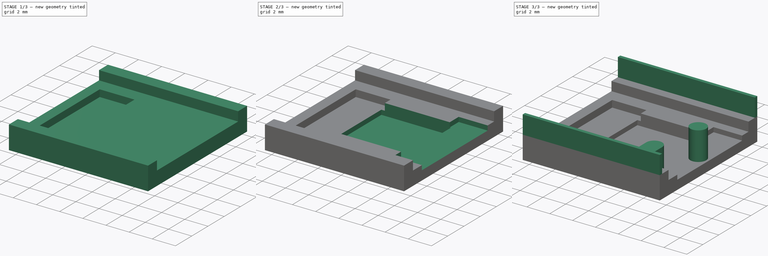
[diagram: build sequence overview — one tinted view per stage of 3, left to right]
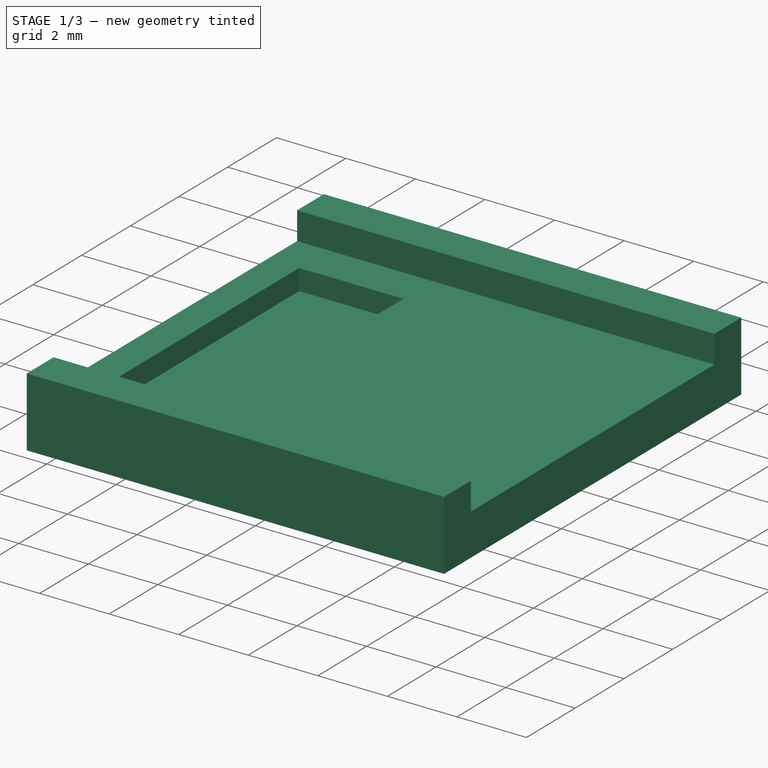
[diagram: stage 1 of 3 — iso view after this stage's code; geometry added in this stage tinted green]
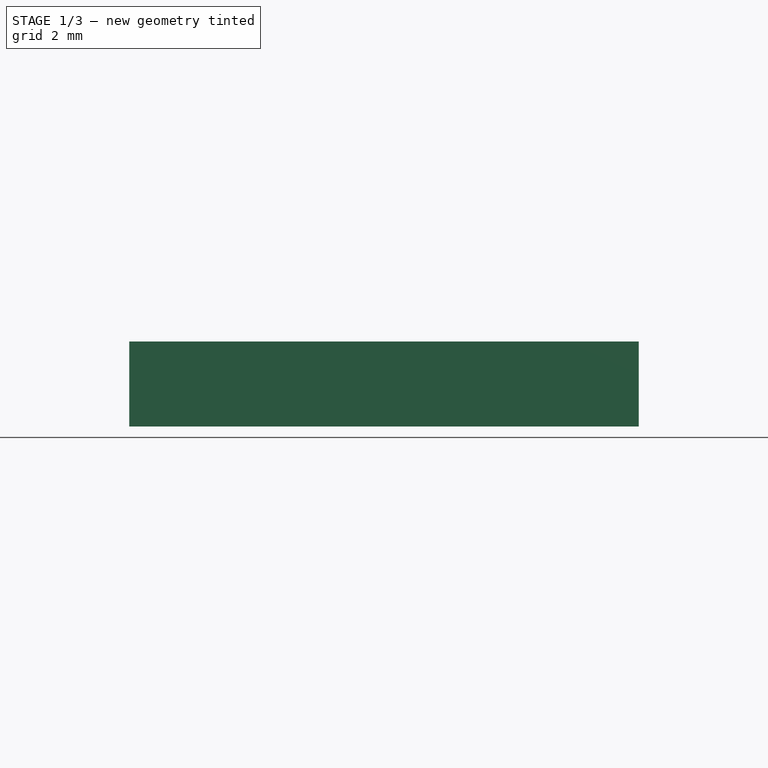
[diagram: stage 1 of 3 — front view after this stage's code; geometry added in this stage tinted green]
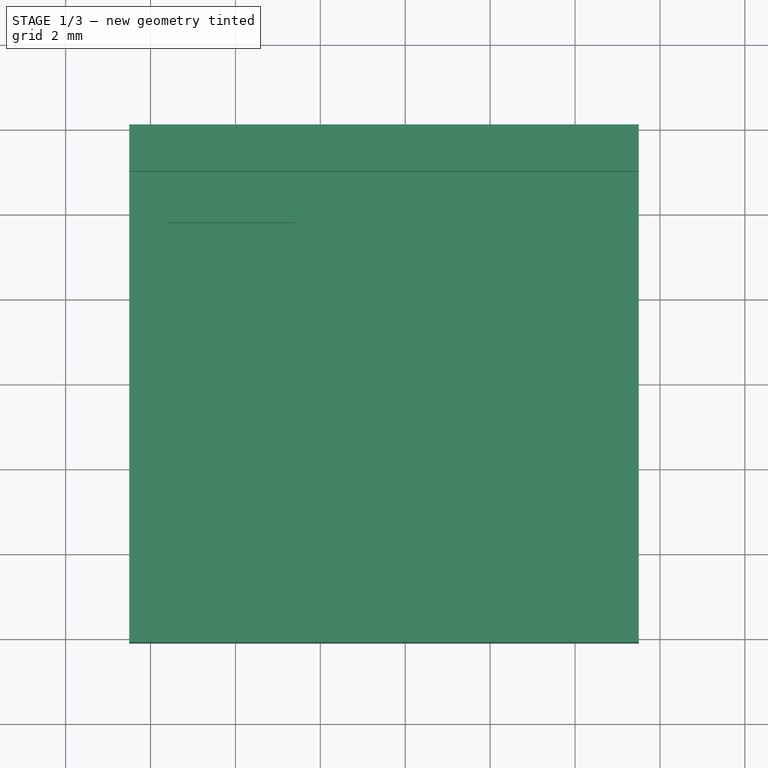
[diagram: stage 1 of 3 — top view after this stage's code; geometry added in this stage tinted green]
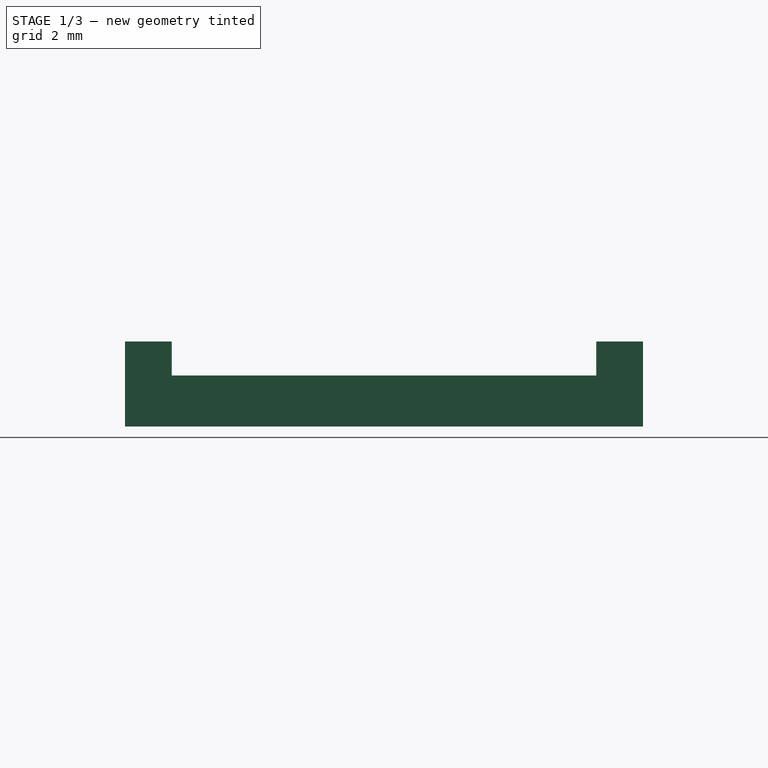
[diagram: stage 1 of 3 — right view after this stage's code; geometry added in this stage tinted green]
FCSTD DOCUMENT  (FreeCAD 0.16R6712 (Git))
Label: tomu_0.4_case_short
License: All rights reserved
LicenseURL: http://en.wikipedia.org/wiki/All_rights_reserved
objects: Part::Feature×12, Sketcher::SketchObject×9, PartDesign::Pad×4, PartDesign::Pocket×4, App::DocumentObjectGroup×2, App::MeasureDistance×2
note: 37 computed .brp shape members not serialized (recipe doc carries the construction recipe); baked Part::Feature solids carry a one-line shape summary decoded from their .brp

FEATURE [Part::Feature] Pcb
  Placement = pos=(-23.525,21.8,0) rot=(0,0,1;0rad)
  shape: bbox 13.01 x 9.41 x 0.61 mm, 101 faces (baked)
FEATURE [Sketcher::SketchObject] PCB_Sketch
  sketch-geometry (99):
    g0: LineSegment StartX=4.975 StartY=-4.7 StartZ=0 EndX=6 EndY=-4.7 EndZ=0
    g1: LineSegment StartX=4.975 StartY=1.255 StartZ=0 EndX=5.525 EndY=1.255 EndZ=0
    g2: LineSegment StartX=5 StartY=-1.25 StartZ=0 EndX=5.5 EndY=-1.25 EndZ=0
    g3: LineSegment StartX=5.9 StartY=0.88 StartZ=0 EndX=5.9 EndY=-0.85 EndZ=0
    g4: LineSegment StartX=-6.5 StartY=4.2 StartZ=0 EndX=-6.5 EndY=-4.2 EndZ=0
    g5: LineSegment StartX=6 StartY=4.7 StartZ=0 EndX=-6 EndY=4.7 EndZ=0
    g6: LineSegment StartX=-6 StartY=-4.7 StartZ=0 EndX=3.375 EndY=-4.7 EndZ=0
    g7: LineSegment StartX=6.5 StartY=0 StartZ=0 EndX=6.5 EndY=0.13 EndZ=0
    g8: LineSegment StartX=6.5 StartY=0.13 StartZ=0 EndX=6.5 EndY=0.27 EndZ=0
    g9: LineSegment StartX=6.5 StartY=0.27 StartZ=0 EndX=6.5 EndY=0.4 EndZ=0
    g10: LineSegment StartX=6.5 StartY=0.4 StartZ=0 EndX=6.5 EndY=0.54 EndZ=0
    g11: LineSegment StartX=6.5 StartY=0.54 StartZ=0 EndX=6.49 EndY=0.67 EndZ=0
    g12: LineSegment StartX=6.49 StartY=0.67 StartZ=0 EndX=6.49 EndY=0.81 EndZ=0
    g13: LineSegment StartX=6.49 StartY=0.81 StartZ=0 EndX=6.49 EndY=0.94 EndZ=0
    g14: LineSegment StartX=6.49 StartY=0.94 StartZ=0 EndX=6.48 EndY=1.07 EndZ=0
    g15: LineSegment StartX=6.48 StartY=1.07 StartZ=0 EndX=6.48 EndY=1.21 EndZ=0
    g16: LineSegment StartX=6.48 StartY=1.21 StartZ=0 EndX=6.47 EndY=1.34 EndZ=0
    g17: LineSegment StartX=6.47 StartY=1.34 StartZ=0 EndX=6.46 EndY=1.47 EndZ=0
    g18: LineSegment StartX=6.46 StartY=1.47 StartZ=0 EndX=6.46 EndY=1.6 EndZ=0
    g19: LineSegment StartX=6.46 StartY=1.6 StartZ=0 EndX=6.45 EndY=1.73 EndZ=0
    g20: LineSegment StartX=6.45 StartY=1.73 StartZ=0 EndX=6.44 EndY=1.85 EndZ=0
    g21: LineSegment StartX=6.44 StartY=1.85 StartZ=0 EndX=6.43 EndY=1.98 EndZ=0
    g22: LineSegment StartX=6.43 StartY=1.98 StartZ=0 EndX=6.42 EndY=2.1 EndZ=0
    g23: LineSegment StartX=6.42 StartY=2.1 StartZ=0 EndX=6.41 EndY=2.23 EndZ=0
    g24: LineSegment StartX=6.41 StartY=2.23 StartZ=0 EndX=6.4 EndY=2.35 EndZ=0
    g25: LineSegment StartX=6.4 StartY=2.35 StartZ=0 EndX=6.39 EndY=2.47 EndZ=0
    g26: LineSegment StartX=6.39 StartY=2.47 StartZ=0 EndX=6.38 EndY=2.59 EndZ=0
    g27: LineSegment StartX=6.38 StartY=2.59 StartZ=0 EndX=6.37 EndY=2.71 EndZ=0
    g28: LineSegment StartX=6.37 StartY=2.71 StartZ=0 EndX=6.36 EndY=2.83 EndZ=0
    g29: LineSegment StartX=6.36 StartY=2.83 StartZ=0 EndX=6.34 EndY=2.94 EndZ=0
    g30: LineSegment StartX=6.34 StartY=2.94 StartZ=0 EndX=6.33 EndY=3.06 EndZ=0
    g31: LineSegment StartX=6.33 StartY=3.06 StartZ=0 EndX=6.32 EndY=3.17 EndZ=0
    g32: LineSegment StartX=6.32 StartY=3.17 StartZ=0 EndX=6.3 EndY=3.28 EndZ=0
    g33: LineSegment StartX=6.3 StartY=3.28 StartZ=0 EndX=6.29 EndY=3.38 EndZ=0
    g34: LineSegment StartX=6.29 StartY=3.38 StartZ=0 EndX=6.27 EndY=3.49 EndZ=0
    g35: LineSegment StartX=6.27 StartY=3.49 StartZ=0 EndX=6.26 EndY=3.59 EndZ=0
    g36: LineSegment StartX=6.26 StartY=3.59 StartZ=0 EndX=6.24 EndY=3.69 EndZ=0
    g37: LineSegment StartX=6.24 StartY=3.69 StartZ=0 EndX=6.22 EndY=3.79 EndZ=0
    g38: LineSegment StartX=6.22 StartY=3.79 StartZ=0 EndX=6.21 EndY=3.89 EndZ=0
    g39: LineSegment StartX=6.21 StartY=3.89 StartZ=0 EndX=6.19 EndY=3.98 EndZ=0
    g40: LineSegment StartX=6.19 StartY=3.98 StartZ=0 EndX=6.17 EndY=4.08 EndZ=0
    g41: LineSegment StartX=6.17 StartY=4.08 StartZ=0 EndX=6.15 EndY=4.16 EndZ=0
    g42: LineSegment StartX=6.15 StartY=4.16 StartZ=0 EndX=6.13 EndY=4.25 EndZ=0
    g43: LineSegment StartX=6.13 StartY=4.25 StartZ=0 EndX=6.12 EndY=4.34 EndZ=0
    g44: LineSegment StartX=6.12 StartY=4.34 StartZ=0 EndX=6.1 EndY=4.42 EndZ=0
    g45: LineSegment StartX=6.1 StartY=4.42 StartZ=0 EndX=6.08 EndY=4.5 EndZ=0
    g46: LineSegment StartX=6.08 StartY=4.5 StartZ=0 EndX=6.06 EndY=4.57 EndZ=0
    g47: LineSegment StartX=6.06 StartY=4.57 StartZ=0 EndX=6.03 EndY=4.65 EndZ=0
    g48: LineSegment StartX=6.03 StartY=4.65 StartZ=0 EndX=6 EndY=4.7 EndZ=0
    g49: LineSegment StartX=6 StartY=-4.7 StartZ=0 EndX=6.03 EndY=-4.65 EndZ=0
    g50: LineSegment StartX=6.03 StartY=-4.65 StartZ=0 EndX=6.06 EndY=-4.57 EndZ=0
    g51: LineSegment StartX=6.06 StartY=-4.57 StartZ=0 EndX=6.08 EndY=-4.5 EndZ=0
    g52: LineSegment StartX=6.08 StartY=-4.5 StartZ=0 EndX=6.1 EndY=-4.42 EndZ=0
    g53: LineSegment StartX=6.1 StartY=-4.42 StartZ=0 EndX=6.12 EndY=-4.34 EndZ=0
    g54: LineSegment StartX=6.12 StartY=-4.34 StartZ=0 EndX=6.13 EndY=-4.25 EndZ=0
    g55: LineSegment StartX=6.13 StartY=-4.25 StartZ=0 EndX=6.15 EndY=-4.16 EndZ=0
    g56: LineSegment StartX=6.15 StartY=-4.16 StartZ=0 EndX=6.17 EndY=-4.08 EndZ=0
    g57: LineSegment StartX=6.17 StartY=-4.08 StartZ=0 EndX=6.19 EndY=-3.98 EndZ=0
    g58: LineSegment StartX=6.19 StartY=-3.98 StartZ=0 EndX=6.21 EndY=-3.89 EndZ=0
    g59: LineSegment StartX=6.21 StartY=-3.89 StartZ=0 EndX=6.22 EndY=-3.79 EndZ=0
    g60: LineSegment StartX=6.22 StartY=-3.79 StartZ=0 EndX=6.24 EndY=-3.69 EndZ=0
    g61: LineSegment StartX=6.24 StartY=-3.69 StartZ=0 EndX=6.26 EndY=-3.59 EndZ=0
    g62: LineSegment StartX=6.26 StartY=-3.59 StartZ=0 EndX=6.27 EndY=-3.49 EndZ=0
    g63: LineSegment StartX=6.27 StartY=-3.49 StartZ=0 EndX=6.29 EndY=-3.38 EndZ=0
    g64: LineSegment StartX=6.29 StartY=-3.38 StartZ=0 EndX=6.3 EndY=-3.28 EndZ=0
    g65: LineSegment StartX=6.3 StartY=-3.28 StartZ=0 EndX=6.32 EndY=-3.17 EndZ=0
    g66: LineSegment StartX=6.32 StartY=-3.17 StartZ=0 EndX=6.33 EndY=-3.06 EndZ=0
    g67: LineSegment StartX=6.33 StartY=-3.06 StartZ=0 EndX=6.34 EndY=-2.94 EndZ=0
    g68: LineSegment StartX=6.34 StartY=-2.94 StartZ=0 EndX=6.36 EndY=-2.83 EndZ=0
    g69: LineSegment StartX=6.36 StartY=-2.83 StartZ=0 EndX=6.37 EndY=-2.71 EndZ=0
    g70: LineSegment StartX=6.37 StartY=-2.71 StartZ=0 EndX=6.38 EndY=-2.59 EndZ=0
    g71: LineSegment StartX=6.38 StartY=-2.59 StartZ=0 EndX=6.39 EndY=-2.47 EndZ=0
    g72: LineSegment StartX=6.39 StartY=-2.47 StartZ=0 EndX=6.4 EndY=-2.35 EndZ=0
    g73: LineSegment StartX=6.4 StartY=-2.35 StartZ=0 EndX=6.41 EndY=-2.23 EndZ=0
    g74: LineSegment StartX=6.41 StartY=-2.23 StartZ=0 EndX=6.42 EndY=-2.1 EndZ=0
    g75: LineSegment StartX=6.42 StartY=-2.1 StartZ=0 EndX=6.43 EndY=-1.98 EndZ=0
    g76: LineSegment StartX=6.43 StartY=-1.98 StartZ=0 EndX=6.44 EndY=-1.85 EndZ=0
    g77: LineSegment StartX=6.44 StartY=-1.85 StartZ=0 EndX=6.45 EndY=-1.73 EndZ=0
    g78: LineSegment StartX=6.45 StartY=-1.73 StartZ=0 EndX=6.46 EndY=-1.6 EndZ=0
    g79: LineSegment StartX=6.46 StartY=-1.6 StartZ=0 EndX=6.46 EndY=-1.47 EndZ=0
    g80: LineSegment StartX=6.46 StartY=-1.47 StartZ=0 EndX=6.47 EndY=-1.34 EndZ=0
    g81: LineSegment StartX=6.47 StartY=-1.34 StartZ=0 EndX=6.48 EndY=-1.21 EndZ=0
    g82: LineSegment StartX=6.48 StartY=-1.21 StartZ=0 EndX=6.48 EndY=-1.07 EndZ=0
    g83: LineSegment StartX=6.48 StartY=-1.07 StartZ=0 EndX=6.49 EndY=-0.94 EndZ=0
    g84: LineSegment StartX=6.49 StartY=-0.94 StartZ=0 EndX=6.49 EndY=-0.81 EndZ=0
    g85: LineSegment StartX=6.49 StartY=-0.81 StartZ=0 EndX=6.49 EndY=-0.67 EndZ=0
    g86: LineSegment StartX=6.49 StartY=-0.67 StartZ=0 EndX=6.5 EndY=-0.54 EndZ=0
    g87: LineSegment StartX=6.5 StartY=-0.54 StartZ=0 EndX=6.5 EndY=-0.4 EndZ=0
    g88: LineSegment StartX=6.5 StartY=-0.4 StartZ=0 EndX=6.5 EndY=-0.27 EndZ=0
    g89: LineSegment StartX=6.5 StartY=-0.27 StartZ=0 EndX=6.5 EndY=-0.13 EndZ=0
    g90: LineSegment StartX=6.5 StartY=-0.13 StartZ=0 EndX=6.5 EndY=0 EndZ=0
    g91: ArcOfCircle CenterX=4.6 CenterY=0.015 CenterZ=0 NormalX=0 NormalY=0 NormalZ=1 Radius=0.865 StartAngle=1.5708 EndAngle=4.71239
    g92: ArcOfCircle CenterX=4.175 CenterY=-4.7 CenterZ=0 NormalX=0 NormalY=0 NormalZ=1 Radius=0.8 StartAngle=0 EndAngle=3.14159
    g93: ArcOfCircle CenterX=4.975 CenterY=0.88 CenterZ=0 NormalX=0 NormalY=0 NormalZ=1 Radius=0.375 StartAngle=1.5708 EndAngle=3.14159
    g94: ArcOfCircle CenterX=5 CenterY=-0.85 CenterZ=0 NormalX=0 NormalY=0 NormalZ=1 Radius=0.4 StartAngle=3.14159 EndAngle=4.71239
    g95: ArcOfCircle CenterX=5.5 CenterY=-0.85 CenterZ=0 NormalX=0 NormalY=0 NormalZ=1 Radius=0.4 StartAngle=4.71239 EndAngle=6.28319
    g96: ArcOfCircle CenterX=5.525 CenterY=0.88 CenterZ=0 NormalX=0 NormalY=0 NormalZ=1 Radius=0.375 StartAngle=0 EndAngle=1.5708
    g97: ArcOfCircle CenterX=-6 CenterY=4.2 CenterZ=0 NormalX=0 NormalY=0 NormalZ=1 Radius=0.5 StartAngle=1.5708 EndAngle=3.14159
    g98: ArcOfCircle CenterX=-6 CenterY=-4.2 CenterZ=0 NormalX=0 NormalY=0 NormalZ=1 Radius=0.5 StartAngle=3.14159 EndAngle=4.71239
  constraints (124):
    c: Horizontal(g0)
    c: Coincident(g0,g49)
    c: Coincident(g0,g92)
    c: Horizontal(g1)
    c: Coincident(g1,g93)
    c: Coincident(g1,g96)
    c: Horizontal(g2)
    c: Coincident(g2,g94)
    c: Coincident(g2,g95)
    c: Vertical(g3)
    c: Coincident(g3,g95)
    c: Coincident(g3,g96)
    c: Vertical(g4)
    c: Coincident(g4,g97)
    c: Coincident(g4,g98)
    c: Horizontal(g5)
    c: Coincident(g5,g48)
    c: Coincident(g5,g97)
    c: Horizontal(g6)
    c: Coincident(g6,g92)
    c: Coincident(g6,g98)
    c: Vertical(g7)
    c: Coincident(g7,g8)
    c: Coincident(g7,g90)
    c: Vertical(g8)
    c: Coincident(g8,g9)
    c: Vertical(g9)
    c: Coincident(g9,g10)
    c: Vertical(g10)
    c: Coincident(g10,g11)
    c: Coincident(g11,g12)
    c: Vertical(g12)
    c: Coincident(g12,g13)
    c: Vertical(g13)
    c: Coincident(g13,g14)
    c: Coincident(g14,g15)
    c: Vertical(g15)
    c: Coincident(g15,g16)
    c: Coincident(g16,g17)
    c: Coincident(g17,g18)
    c: Vertical(g18)
    c: Coincident(g18,g19)
    c: Coincident(g19,g20)
    c: Coincident(g20,g21)
    c: Coincident(g21,g22)
    c: Coincident(g22,g23)
    c: Coincident(g23,g24)
    c: Coincident(g24,g25)
    c: Coincident(g25,g26)
    c: Coincident(g26,g27)
    c: Coincident(g27,g28)
    c: Coincident(g28,g29)
    c: Coincident(g29,g30)
    c: Coincident(g30,g31)
    c: Coincident(g31,g32)
    c: Coincident(g32,g33)
    c: Coincident(g33,g34)
    c: Coincident(g34,g35)
    c: Coincident(g35,g36)
    c: Coincident(g36,g37)
    c: Coincident(g37,g38)
    c: Coincident(g38,g39)
    c: Coincident(g39,g40)
    c: Coincident(g40,g41)
    c: Coincident(g41,g42)
    c: Coincident(g42,g43)
    c: Coincident(g43,g44)
    c: Coincident(g44,g45)
    c: Coincident(g45,g46)
    c: Coincident(g46,g47)
    c: Coincident(g47,g48)
    c: Coincident(g49,g50)
    c: Coincident(g50,g51)
    c: Coincident(g51,g52)
    c: Coincident(g52,g53)
    c: Coincident(g53,g54)
    c: Coincident(g54,g55)
    c: Coincident(g55,g56)
    c: Coincident(g56,g57)
    c: Coincident(g57,g58)
    c: Coincident(g58,g59)
    c: Coincident(g59,g60)
    c: Coincident(g60,g61)
    c: Coincident(g61,g62)
    c: Coincident(g62,g63)
    c: Coincident(g63,g64)
    c: Coincident(g64,g65)
    c: Coincident(g65,g66)
    c: Coincident(g66,g67)
    c: Coincident(g67,g68)
    c: Coincident(g68,g69)
    c: Coincident(g69,g70)
    c: Coincident(g70,g71)
    c: Coincident(g71,g72)
    c: Coincident(g72,g73)
    c: Coincident(g73,g74)
    c: Coincident(g74,g75)
    c: Coincident(g75,g76)
    c: Coincident(g76,g77)
    c: Coincident(g77,g78)
    c: Coincident(g78,g79)
    c: Vertical(g79)
    c: Coincident(g79,g80)
    c: Coincident(g80,g81)
    c: Coincident(g81,g82)
    c: Vertical(g82)
    c: Coincident(g82,g83)
    c: Coincident(g83,g84)
    c: Vertical(g84)
    c: Coincident(g84,g85)
    c: Vertical(g85)
    c: Coincident(g85,g86)
    c: Coincident(g86,g87)
    c: Vertical(g87)
    c: Coincident(g87,g88)
    c: Vertical(g88)
    c: Coincident(g88,g89)
    c: Vertical(g89)
    c: Coincident(g89,g90)
    c: Vertical(g90)
    c: Vertical(g91)
    c: Coincident(g91,g93)
    c: Coincident(g91,g94)
    c: Horizontal(g92)
FEATURE [App::DocumentObjectGroup] Board_Geoms
  Group = -> [Pcb,PCB_Sketch]
FEATURE [Part::Feature] Shape  label="R_0402_1005Metric_"
  Placement = pos=(3.975,-1.95,-0.6) rot=(0,1,0;3.14159rad)
  shape: bbox 1 x 0.5 x 0.35 mm, 26 faces (baked)
FEATURE [Part::Feature] Shape001  label="User Library-led_0402_"
  Placement = pos=(3.975,3.55,-0.6) rot=(1,0,0;3.14159rad)
  shape: bbox 1.01 x 0.5 x 0.45 mm, 43 faces (baked)
FEATURE [Part::Feature] Shape002  label="C_0402_1005Metric_"
  Placement = pos=(-4.175,-2.45,-0.6) rot=(1,0,0;3.14159rad)
  shape: bbox 1 x 0.5 x 0.5 mm, 28 faces (baked)
FEATURE [Part::Feature] Shape003  label="C_0402_1005Metric_001"
  Placement = pos=(-4.175,-0.05,-0.6) rot=(0,1,0;3.14159rad)
  shape: bbox 1 x 0.5 x 0.5 mm, 28 faces (baked)
FEATURE [Part::Feature] Shape004  label="C_0402_1005Metric_002"
  Placement = pos=(-4.175,-1.25,-0.6) rot=(0,1,0;3.14159rad)
  shape: bbox 1 x 0.5 x 0.5 mm, 28 faces (baked)
FEATURE [Part::Feature] Shape005  label="User Library-led_0402_001"
  Placement = pos=(3.975,-3.25,-0.6) rot=(1,0,0;3.14159rad)
  shape: bbox 1.01 x 0.5 x 0.45 mm, 43 faces (baked)
FEATURE [Part::Feature] Shape006  label="R_0402_1005Metric_001"
  Placement = pos=(3.975,2.25,-0.6) rot=(1,0,0;3.14159rad)
  shape: bbox 1 x 0.5 x 0.35 mm, 26 faces (baked)
FEATURE [Part::Feature] Shape007  label="R_0402_1005Metric_002"
  Placement = pos=(-4,1.2,-0.6) rot=(1,0,0;3.14159rad)
  shape: bbox 1 x 0.5 x 0.35 mm, 26 faces (baked)
FEATURE [Part::Feature] Shape008  label="R_0402_1005Metric_003"
  Placement = pos=(-4,2.5,-0.6) rot=(1,0,0;3.14159rad)
  shape: bbox 1 x 0.5 x 0.35 mm, 26 faces (baked)
FEATURE [Part::Feature] Shape009  label="QFN-24-1EP_5x5mm_Pitch0.65mm_"
  Placement = pos=(0.075,0.05,-0.6) rot=(0,1,0;3.14159rad)
  shape: bbox 5 x 5 x 0.77 mm, 158 faces (baked)
FEATURE [App::DocumentObjectGroup] Step_Models
  Group = -> [Shape,Shape001,Shape002,Shape003,Shape004,Shape005,Shape006,Shape007,Shape008,Shape009]
FEATURE [Sketcher::SketchObject] Sketch  label="Base Outline"
  sketch-geometry (4):
    g0: LineSegment StartX=-6.5 StartY=6.1 StartZ=0 EndX=5.5 EndY=6.1 EndZ=0
    g1: LineSegment StartX=5.5 StartY=6.1 StartZ=0 EndX=5.5 EndY=-6.1 EndZ=0
    g2: LineSegment StartX=5.5 StartY=-6.1 StartZ=0 EndX=-6.5 EndY=-6.1 EndZ=0
    g3: LineSegment StartX=-6.5 StartY=-6.1 StartZ=0 EndX=-6.5 EndY=6.1 EndZ=0
  constraints (12):
    c: Coincident(g0,g1)
    c: Coincident(g1,g2)
    c: Coincident(g2,g3)
    c: Coincident(g3,g0)
    c: Horizontal(g0)
    c: Horizontal(g2)
    c: Vertical(g1)
    c: Vertical(g3)
    c: DistanceY(g3,g3) = 12.2
    c: DistanceX(g2,g2) = 12
    c: DistanceX(g2,g-1) = 6.5
    c: DistanceY(g2,g-1) = 6.1
FEATURE [PartDesign::Pad] Pad  label="Board shield"
  Length = 2
  Length2 = 100
  Reversed = true
  Sketch = -> Sketch
  Type = 0
FEATURE [Sketcher::SketchObject] Sketch001  label="PCB pocket sketch"
  ExternalGeometry = -> [Pad]
  Support = -> Pad [Face5]
  sketch-geometry (4):
    g0: LineSegment StartX=-6.5 StartY=5 StartZ=0 EndX=6.5 EndY=5 EndZ=0
    g1: LineSegment StartX=6.5 StartY=5 StartZ=0 EndX=6.5 EndY=-5 EndZ=0
    g2: LineSegment StartX=6.5 StartY=-5 StartZ=0 EndX=-6.5 EndY=-5 EndZ=0
    g3: LineSegment StartX=-6.5 StartY=-5 StartZ=0 EndX=-6.5 EndY=5 EndZ=0
  constraints (12):
    c: Coincident(g0,g1)
    c: Coincident(g1,g2)
    c: Coincident(g2,g3)
    c: Coincident(g3,g0)
    c: Horizontal(g0)
    c: Horizontal(g2)
    c: Vertical(g1)
    c: Vertical(g3)
    c: DistanceY(g3,g3) = 10
    c: DistanceX(g0,g0) = 13
    c: DistanceY(g0,g-3) = 1.1
    c: DistanceX(g-3,g0) = 0
FEATURE [PartDesign::Pocket] Pocket  label="PCB Pocket"
  Length = 0.8
  Sketch = -> Sketch001
  Type = 0
FEATURE [Sketcher::SketchObject] Sketch002  label="Passives Pocket Sketch"
  Placement = pos=(0,0,-0.8) rot=(0,0,1;0rad)
  Support = -> Pocket [Face8]
  sketch-geometry (4):
    g0: LineSegment StartX=-5.6 StartY=3.8 StartZ=0 EndX=-2.6 EndY=3.8 EndZ=0
    g1: LineSegment StartX=-2.6 StartY=3.8 StartZ=0 EndX=-2.6 EndY=-3.7 EndZ=0
    g2: LineSegment StartX=-2.6 StartY=-3.7 StartZ=0 EndX=-5.6 EndY=-3.7 EndZ=0
    g3: LineSegment StartX=-5.6 StartY=-3.7 StartZ=0 EndX=-5.6 EndY=3.8 EndZ=0
  constraints (12):
    c: Coincident(g0,g1)
    c: Coincident(g1,g2)
    c: Coincident(g2,g3)
    c: Coincident(g3,g0)
    c: Horizontal(g0)
    c: Horizontal(g2)
    c: Vertical(g1)
    c: Vertical(g3)
    c: DistanceX(g0,g0) = 3
    c: DistanceY(g3,g3) = 7.5
    c: DistanceY(g0) = 3.8
    c: DistanceX(g0) = -5.6
FEATURE [PartDesign::Pocket] Pocket001  label="Passives Pocket"
  Length = 0.6
  Sketch = -> Sketch002
  Type = 0
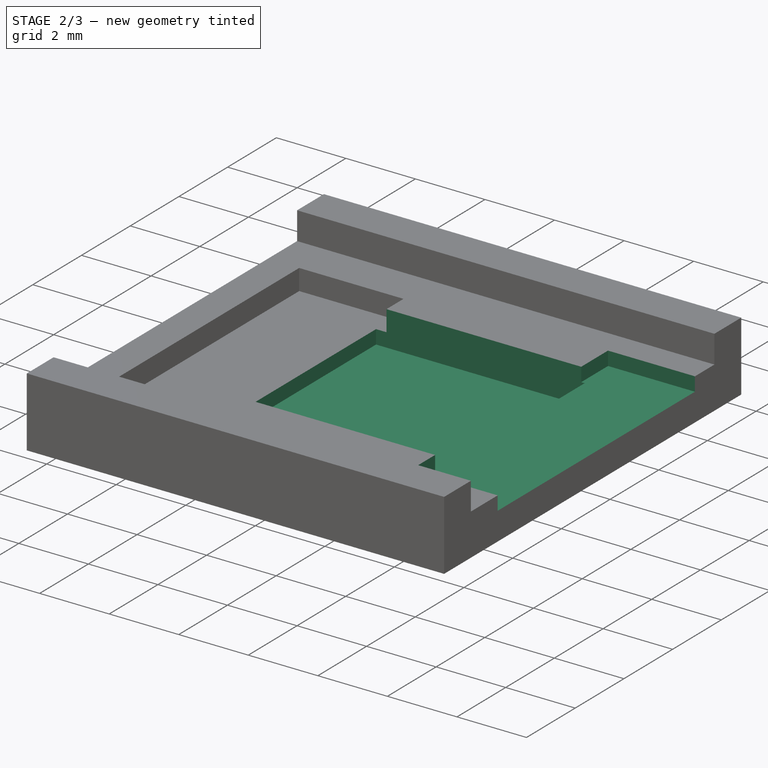
[diagram: stage 2 of 3 — iso view after this stage's code; geometry added in this stage tinted green]
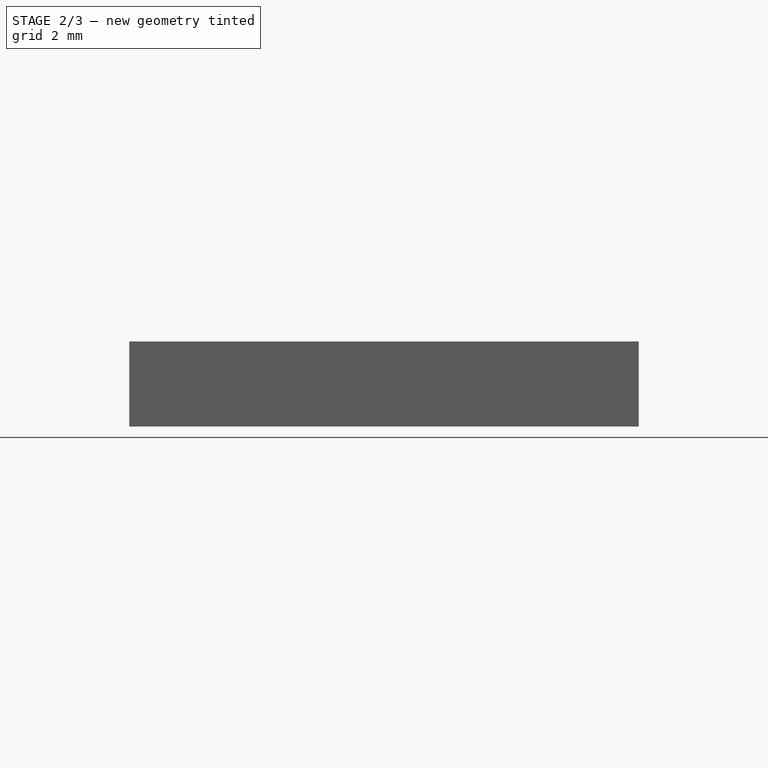
[diagram: stage 2 of 3 — front view after this stage's code; geometry added in this stage tinted green]
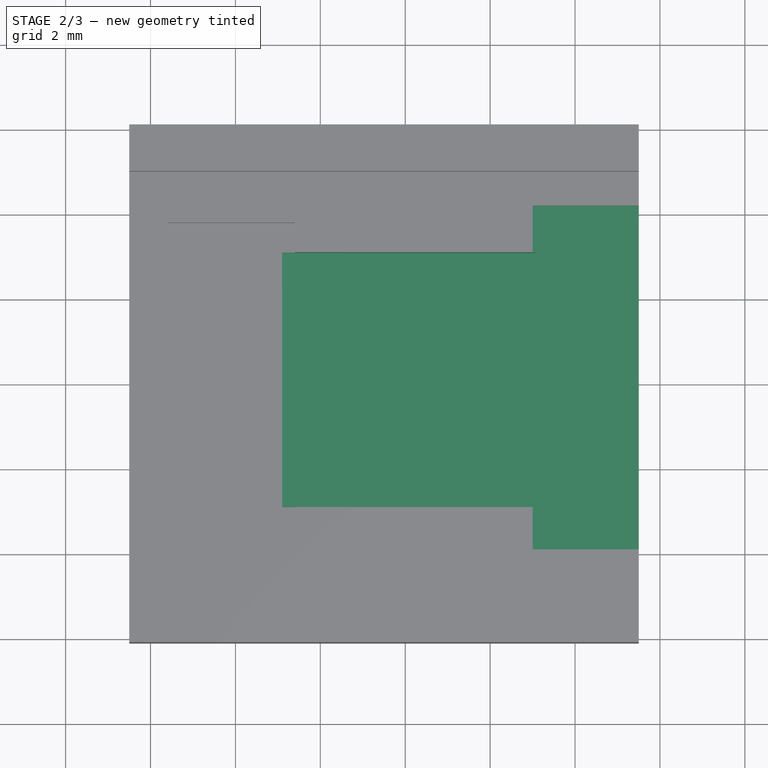
[diagram: stage 2 of 3 — top view after this stage's code; geometry added in this stage tinted green]
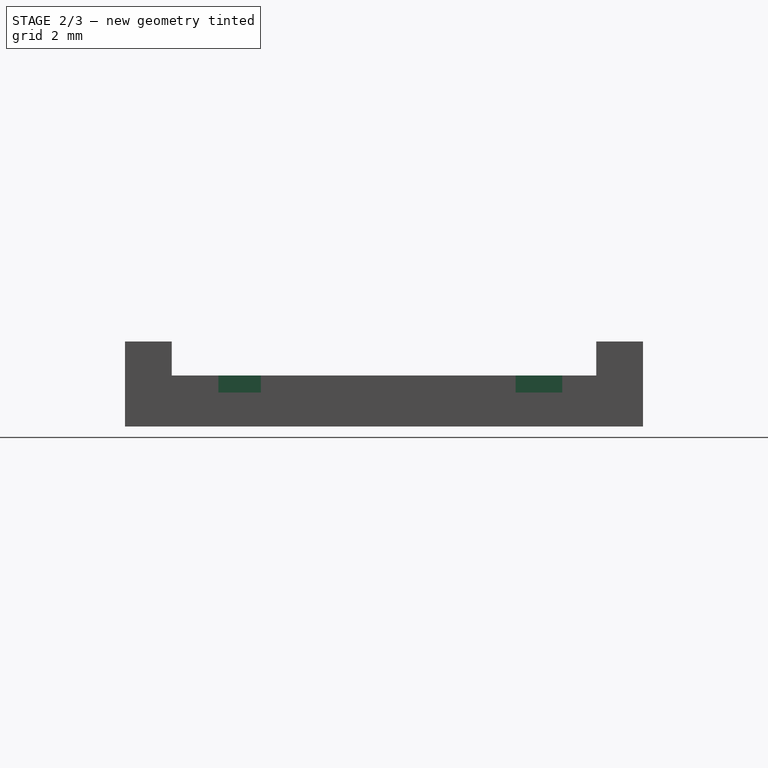
[diagram: stage 2 of 3 — right view after this stage's code; geometry added in this stage tinted green]
FEATURE [Sketcher::SketchObject] Sketch003  label="MCU Pocket Sketch"
  Placement = pos=(0,0,-0.8) rot=(0,0,1;0rad)
  Support = -> Pocket001 [Face8]
  sketch-geometry (4):
    g0: LineSegment StartX=-2.9 StartY=3.1 StartZ=0 EndX=3.1 EndY=3.1 EndZ=0
    g1: LineSegment StartX=3.1 StartY=3.1 StartZ=0 EndX=3.1 EndY=-2.9 EndZ=0
    g2: LineSegment StartX=3.1 StartY=-2.9 StartZ=0 EndX=-2.9 EndY=-2.9 EndZ=0
    g3: LineSegment StartX=-2.9 StartY=-2.9 StartZ=0 EndX=-2.9 EndY=3.1 EndZ=0
  constraints (12):
    c: Coincident(g0,g1)
    c: Coincident(g1,g2)
    c: Coincident(g2,g3)
    c: Coincident(g3,g0)
    c: Horizontal(g0)
    c: Horizontal(g2)
    c: Vertical(g1)
    c: Vertical(g3)
    c: DistanceX(g0,g0) = 6
    c: DistanceY(g1,g1) = 6
    c: DistanceX(g0) = -2.9
    c: DistanceY(g0) = 3.1
FEATURE [PartDesign::Pocket] Pocket002  label="MCU Pocket"
  Length = 1
  Sketch = -> Sketch003
  Type = 0
FEATURE [Sketcher::SketchObject] Sketch004  label="Edge Pocket Sketch"
  Placement = pos=(0,0,-0.8) rot=(0,0,1;0rad)
  Support = -> Pocket002 [Face8]
  sketch-geometry (4):
    g0: LineSegment StartX=6 StartY=-3.9 StartZ=0 EndX=3 EndY=-3.9 EndZ=0
    g1: LineSegment StartX=3 StartY=-3.9 StartZ=0 EndX=3 EndY=4.2 EndZ=0
    g2: LineSegment StartX=3 StartY=4.2 StartZ=0 EndX=6 EndY=4.2 EndZ=0
    g3: LineSegment StartX=6 StartY=4.2 StartZ=0 EndX=6 EndY=-3.9 EndZ=0
  constraints (12):
    c: Coincident(g0,g1)
    c: Coincident(g1,g2)
    c: Coincident(g2,g3)
    c: Coincident(g3,g0)
    c: Horizontal(g0)
    c: Horizontal(g2)
    c: Vertical(g1)
    c: Vertical(g3)
    c: DistanceX(g0,g0) = 3
    c: DistanceY(g3,g3) = 8.1
    c: DistanceX(g1) = 3
    c: DistanceY(g1) = 4.2
FEATURE [PartDesign::Pocket] Pocket003  label="Edge Pocket"
  Length = 0.4
  Sketch = -> Sketch004
  Type = 0
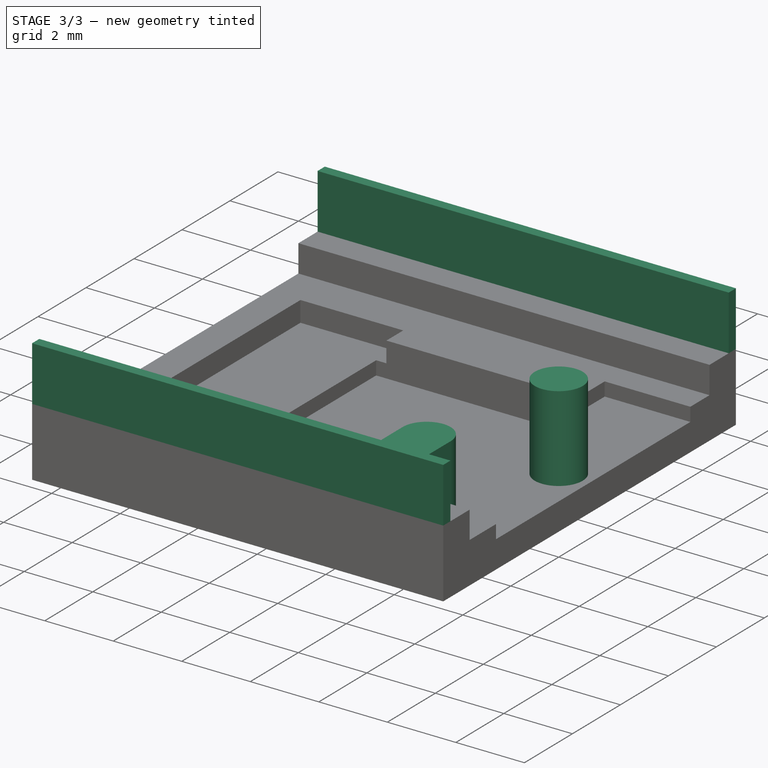
[diagram: stage 3 of 3 — iso view after this stage's code; geometry added in this stage tinted green]
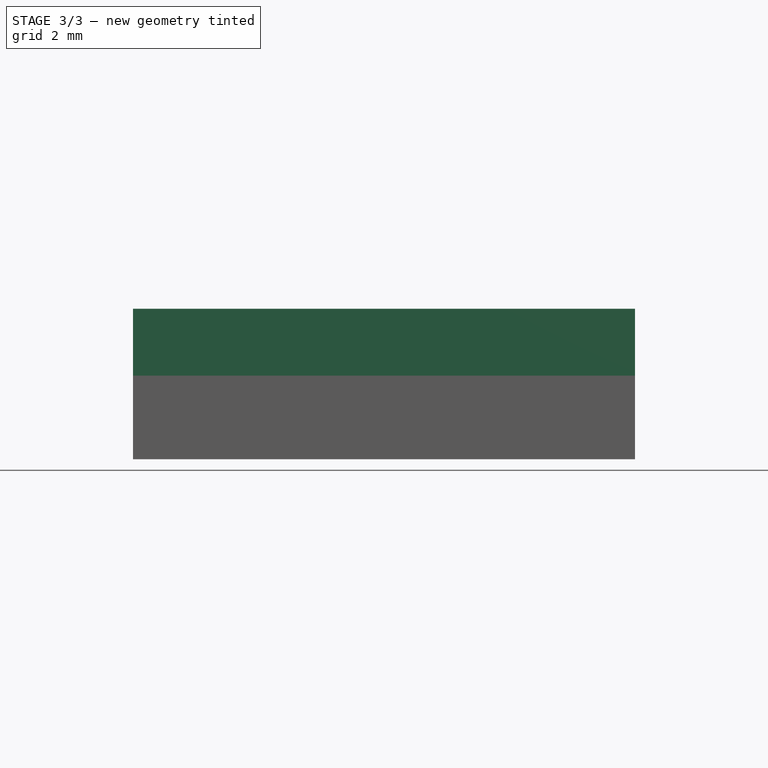
[diagram: stage 3 of 3 — front view after this stage's code; geometry added in this stage tinted green]
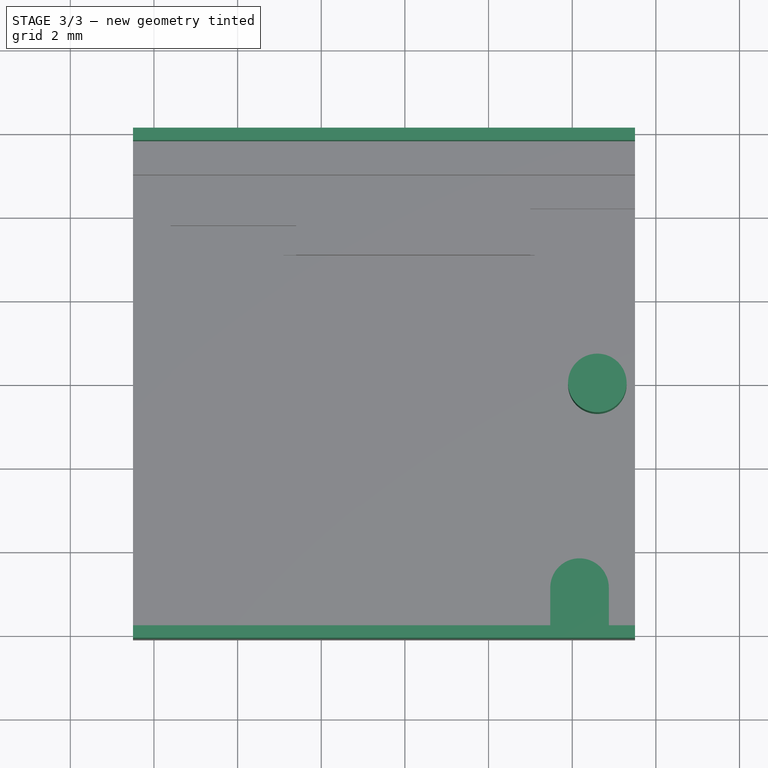
[diagram: stage 3 of 3 — top view after this stage's code; geometry added in this stage tinted green]
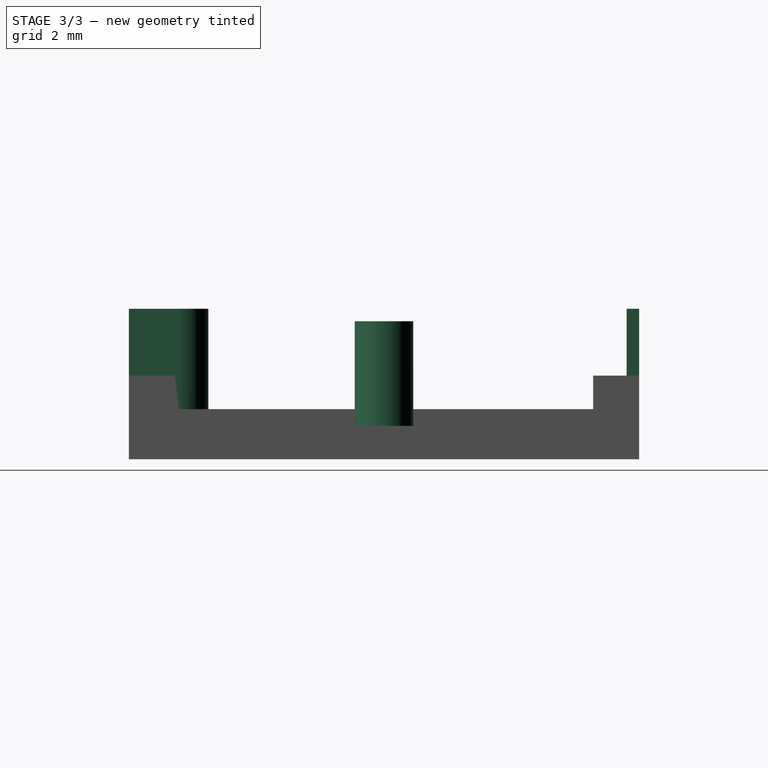
[diagram: stage 3 of 3 — right view after this stage's code; geometry added in this stage tinted green]
FEATURE [Sketcher::SketchObject] Sketch005  label="Mounting Peg Sketch"
  ExternalGeometry = -> [Pocket003]
  Placement = pos=(0,0,-1.2) rot=(0,0,1;0rad)
  Support = -> Pocket003 [Face12]
  sketch-geometry (1):
    g0: Circle CenterX=4.6 CenterY=0 CenterZ=0 NormalX=0 NormalY=0 NormalZ=1 Radius=0.7
  constraints (3):
    c: PointOnObject(g0,g-1)
    c: Radius(g0) = 0.7
    c: DistanceX(g0,g-3) = 0.9
FEATURE [PartDesign::Pad] Pad001  label="Mounting Peg"
  Length = 2.5
  Length2 = 100
  Sketch = -> Sketch005
  Type = 0
FEATURE [Sketcher::SketchObject] Sketch006  label="Alignment Bump Sketch"
  Placement = pos=(0,0,-0.8) rot=(0,0,1;0rad)
  Support = -> Pad001 [Face8]
  sketch-geometry (4):
    g0: LineSegment StartX=4.875 StartY=-5 StartZ=0 EndX=3.475 EndY=-5 EndZ=0
    g1: ArcOfCircle CenterX=4.175 CenterY=-4.9 CenterZ=0 NormalX=0 NormalY=0 NormalZ=1 Radius=0.7 StartAngle=0 EndAngle=3.14159
    g2: LineSegment StartX=4.875 StartY=-5 StartZ=0 EndX=4.875 EndY=-4.9 EndZ=0
    g3: LineSegment StartX=3.475 StartY=-5 StartZ=0 EndX=3.475 EndY=-4.9 EndZ=0
  constraints (13):
    c: Vertical(g3)
    c: Coincident(g3,g0)
    c: Coincident(g1,g3)
    c: Coincident(g0,g2)
    c: Horizontal(g0)
    c: Vertical(g2)
    c: DistanceX(g0,g0) = 1.4
    c: Coincident(g1,g2)
    c: Equal(g2,g3)
    c: DistanceY(g1,g1) = 0
    c: DistanceY(g2,g2) = 0.1
    c: DistanceX(g-1,g0) = 3.475
    c: DistanceY(g1) = -4.9
FEATURE [PartDesign::Pad] Pad002  label="Alignment Bump"
  Length = 0.8
  Length2 = 100
  Sketch = -> Sketch006
  Type = 0
FEATURE [Part::Feature] USB_2_0_type_A_Dual_Stacked_jack_PCB
  Placement = pos=(-15.2198,6.653,-12.2) rot=(0,0,1;0rad)
  shape: bbox 17.3 x 15.25 x 18.5 mm, 136 faces (baked)
FEATURE [App::MeasureDistance] Distance  label="Distance: 0.399469 mm"
  Distance = 0.399469
  P1 = (-6.5,6.09947,2.2)
  P2 = (-6.5,5.7,2.2)
FEATURE [App::MeasureDistance] Distance001  label="Distance: 0.399918 mm"
  Distance = 0.399918
  P1 = (-6.5,-5.7,2.2)
  P2 = (-6.5,-6.09992,2.2)
FEATURE [Sketcher::SketchObject] Sketch009  label="Guiding slots sketch001"
  ExternalGeometry = -> [Pad002]
  Support = -> Pad002 [Face6]
  sketch-geometry (12):
    g0: ArcOfCircle CenterX=4.175 CenterY=-4.9 CenterZ=0 NormalX=0 NormalY=0 NormalZ=1 Radius=0.7 StartAngle=0 EndAngle=3.14159
    g1: LineSegment StartX=3.475 StartY=-4.9 StartZ=0 EndX=3.475 EndY=-5.8 EndZ=0
    g2: LineSegment StartX=4.875 StartY=-4.9 StartZ=0 EndX=4.875 EndY=-5.8 EndZ=0
    g3: LineSegment StartX=5.5 StartY=-6.1 StartZ=0 EndX=5.5 EndY=-5.8 EndZ=0
    g4: LineSegment StartX=4.875 StartY=-5.8 StartZ=0 EndX=5.5 EndY=-5.8 EndZ=0
    g5: LineSegment StartX=-6.5 StartY=-6.1 StartZ=0 EndX=5.5 EndY=-6.1 EndZ=0
    g6: LineSegment StartX=-6.5 StartY=-5.8 StartZ=0 EndX=-6.5 EndY=-6.1 EndZ=0
    g7: LineSegment StartX=3.475 StartY=-5.8 StartZ=0 EndX=-6.5 EndY=-5.8 EndZ=0
    g8: LineSegment StartX=5.5 StartY=6.1 StartZ=0 EndX=-6.5 EndY=6.1 EndZ=0
    g9: LineSegment StartX=-6.5 StartY=5.8 StartZ=0 EndX=5.5 EndY=5.8 EndZ=0
    g10: LineSegment StartX=5.5 StartY=6.1 StartZ=0 EndX=5.5 EndY=5.8 EndZ=0
    g11: LineSegment StartX=-6.5 StartY=6.1 StartZ=0 EndX=-6.5 EndY=5.8 EndZ=0
  constraints (33):
    c: Coincident(g0,g-4)
    c: Coincident(g0,g-4)
    c: Coincident(g0,g1)
    c: DistanceY(g0,g0) = 0
    c: Vertical(g1)
    c: Vertical(g2)
    c: Coincident(g0,g2)
    c: Vertical(g3)
    c: Coincident(g3,g-5)
    c: DistanceY(g3,g3) = 0.3
    c: Coincident(g3,g4)
    c: Horizontal(g4)
    c: Coincident(g2,g4)
    c: DistanceY(g2,g1) = 0
    c: Coincident(g3,g5)
    c: Coincident(g5,g-8)
    c: Coincident(g5,g6)
    c: Vertical(g6)
    c: Equal(g6,g3)
    c: Horizontal(g7)
    c: Coincident(g1,g7)
    c: Coincident(g7,g6)
    c: Coincident(g8,g-7)
    c: Coincident(g8,g-6)
    c: Horizontal(g9)
    c: DistanceX(g8,g9) = 0
    c: Vertical(g10)
    c: Coincident(g10,g8)
    c: Coincident(g10,g9)
    c: Equal(g10,g3)
    c: Vertical(g11)
    c: Coincident(g11,g8)
    c: Coincident(g11,g9)
FEATURE [PartDesign::Pad] Pad004  label="Guiding slots sketch"
  Length = 1.6
  Length2 = 100
  Sketch = -> Sketch009
  Type = 0
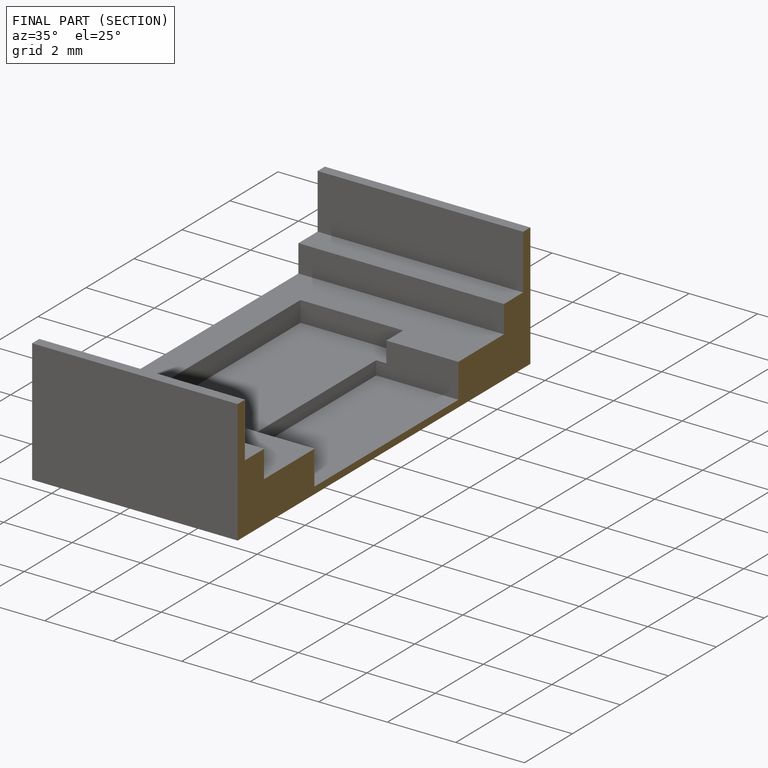
[diagram: finished part — half-section view (interior)]
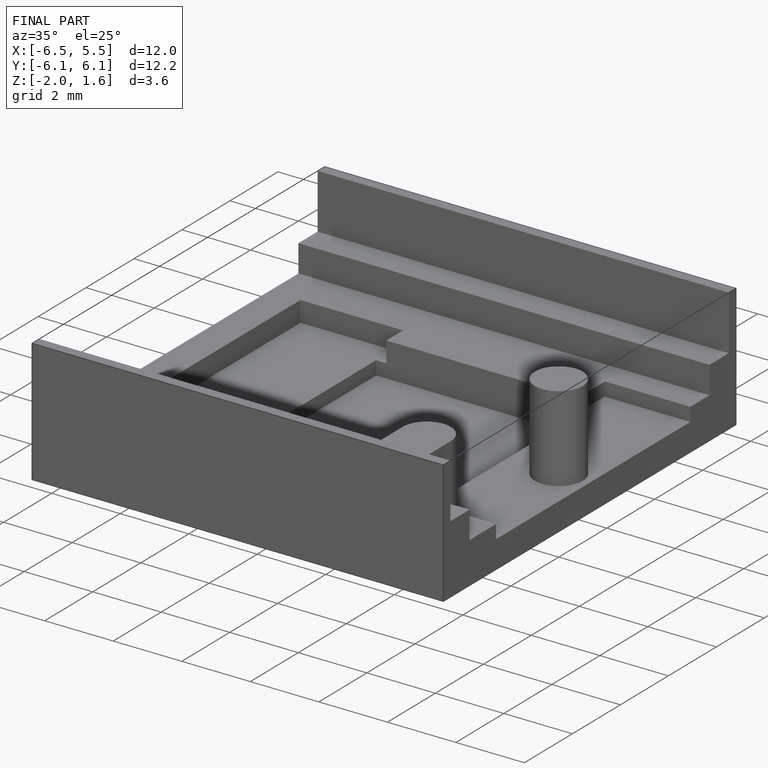
[diagram: finished part — iso view with bounding-box wireframe]
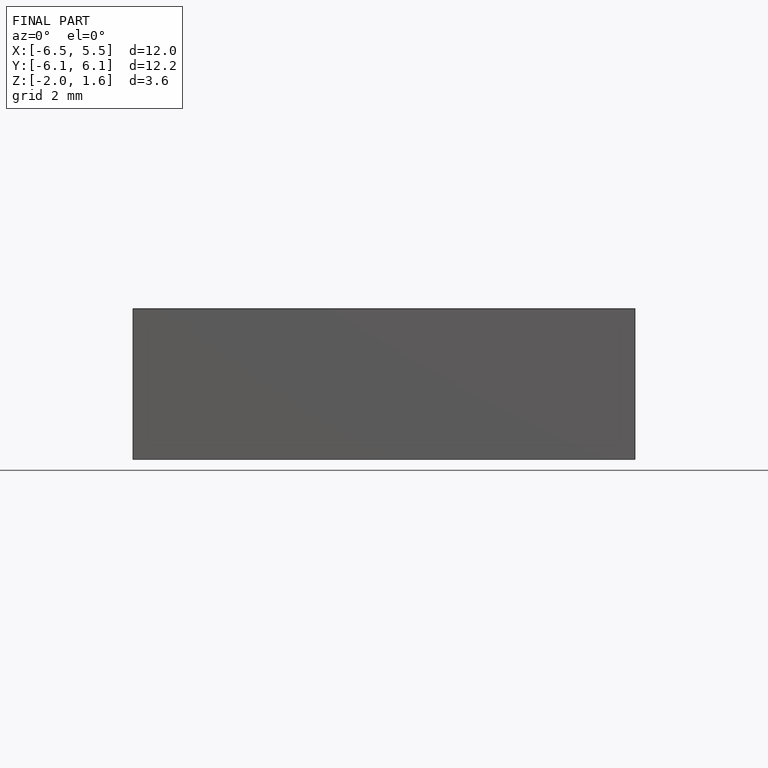
[diagram: finished part — front view with bounding-box wireframe]
